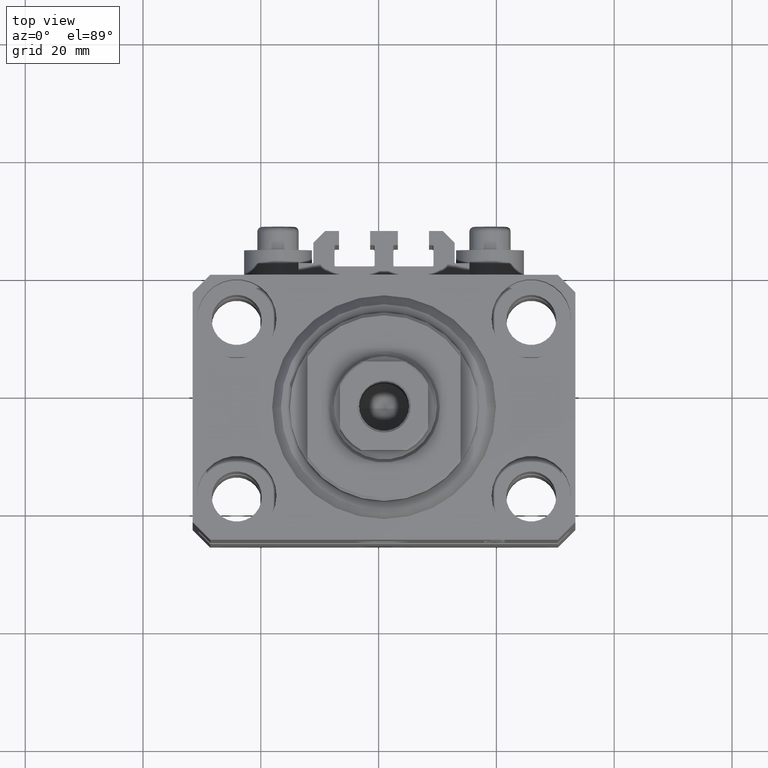
[diagram: clean part render]
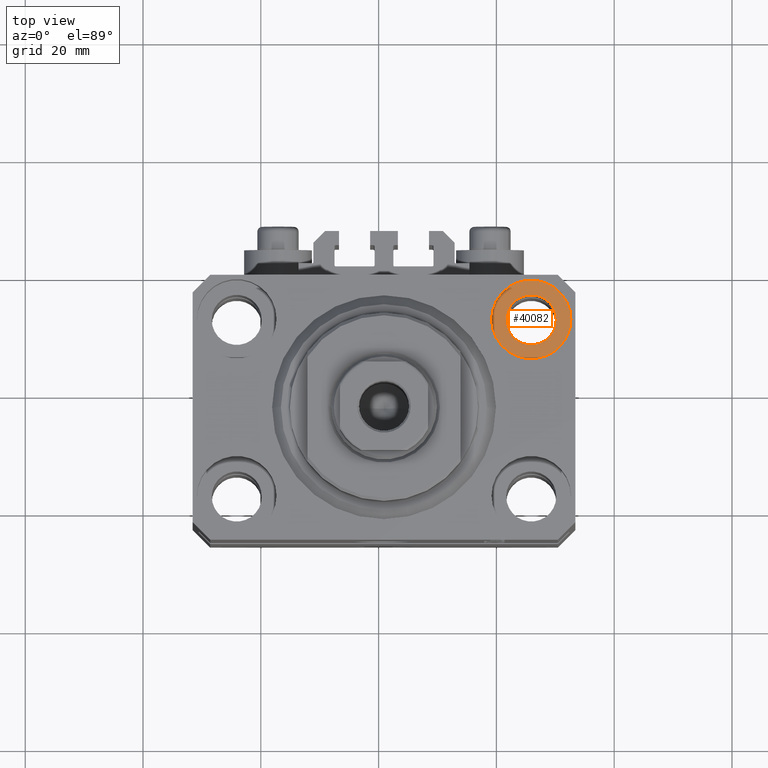
[diagram: same view with one face highlighted and labeled with its STEP entity id]
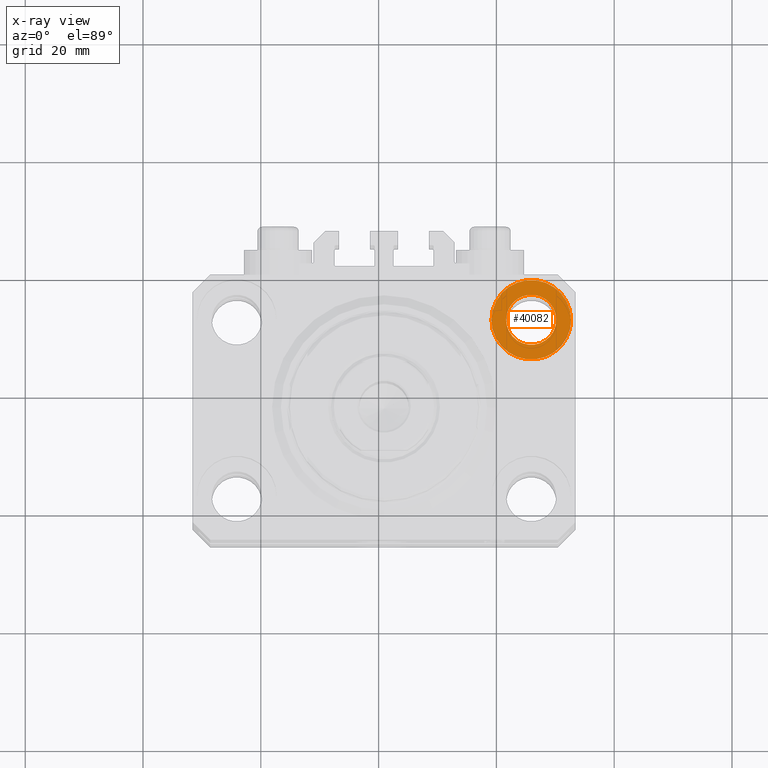
[diagram: x-ray of the same camera — body ghosted, the highlighted face saturated]
A machine part, top view. The second image highlights one B-rep face of the part: STEP entity #40082.
The next image is the same camera in x-ray: the body ghosted, the highlighted face saturated — about 0% of this face is hidden behind the body in this view.
In plain terms, the highlighted planar face has unit normal (0, 0, 1).
Its self-contained STEP definition (entity closure, byte-faithful):
#120 = CARTESIAN_POINT ( 'NONE',  ( 31.74999999995845101, 15.00000000000000888, -9.000000000000000000 ) ) ;
#541 = DIRECTION ( 'NONE',  ( 0.000000000000000000, 0.000000000000000000, 1.000000000000000000 ) ) ;
#688 = AXIS2_PLACEMENT_3D ( 'NONE', #5014, #42199, #16221 ) ;
#3075 = FACE_OUTER_BOUND ( 'NONE', #6775, .T. ) ;
#3591 = CIRCLE ( 'NONE', #25681, 4.249999999958450125 ) ;
#5014 = CARTESIAN_POINT ( 'NONE',  ( 24.99999999999999645, 15.00000000000000888, -9.000000000000000000 ) ) ;
#6775 = EDGE_LOOP ( 'NONE', ( #16526, #17758 ) ) ;
#6853 = EDGE_CURVE ( 'NONE', #27211, #11766, #38756, .T. ) ;
#8457 = EDGE_CURVE ( 'NONE', #21207, #15887, #3591, .T. ) ;
#10454 = EDGE_LOOP ( 'NONE', ( #24697, #35496 ) ) ;
#10762 = CARTESIAN_POINT ( 'NONE',  ( 24.99999999999999645, 15.00000000000000888, -9.000000000000000000 ) ) ;
#11496 = DIRECTION ( 'NONE',  ( 1.000000000000000000, 0.000000000000000000, 0.000000000000000000 ) ) ;
#11766 = VERTEX_POINT ( 'NONE', #21627 ) ;
#13139 = AXIS2_PLACEMENT_3D ( 'NONE', #18611, #25995, #29109 ) ;
#14051 = DIRECTION ( 'NONE',  ( 0.000000000000000000, 0.000000000000000000, 1.000000000000000000 ) ) ;
#15887 = VERTEX_POINT ( 'NONE', #17124 ) ;
#16221 = DIRECTION ( 'NONE',  ( 1.000000000000000000, 0.000000000000000000, 0.000000000000000000 ) ) ;
#16526 = ORIENTED_EDGE ( 'NONE', *, *, #6853, .T. ) ;
#16738 = EDGE_CURVE ( 'NONE', #15887, #21207, #33700, .T. ) ;
#17124 = CARTESIAN_POINT ( 'NONE',  ( 29.24999999995844746, 15.00000000000000888, -9.000000000000000000 ) ) ;
#17631 = PLANE ( 'NONE',  #45090 ) ;
#17758 = ORIENTED_EDGE ( 'NONE', *, *, #28611, .T. ) ;
#18611 = CARTESIAN_POINT ( 'NONE',  ( 24.99999999999999645, 15.00000000000000888, -9.000000000000000000 ) ) ;
#19518 = AXIS2_PLACEMENT_3D ( 'NONE', #33219, #541, #11496 ) ;
#21207 = VERTEX_POINT ( 'NONE', #43199 ) ;
#21627 = CARTESIAN_POINT ( 'NONE',  ( 18.25000000004154543, 15.00000000000000888, -9.000000000000000000 ) ) ;
#24697 = ORIENTED_EDGE ( 'NONE', *, *, #16738, .F. ) ;
#25681 = AXIS2_PLACEMENT_3D ( 'NONE', #10762, #42738, #28683 ) ;
#25995 = DIRECTION ( 'NONE',  ( 0.000000000000000000, 0.000000000000000000, 1.000000000000000000 ) ) ;
#27211 = VERTEX_POINT ( 'NONE', #120 ) ;
#28609 = DIRECTION ( 'NONE',  ( 1.000000000000000000, 0.000000000000000000, -0.000000000000000000 ) ) ;
#28611 = EDGE_CURVE ( 'NONE', #11766, #27211, #33966, .T. ) ;
#28683 = DIRECTION ( 'NONE',  ( 1.000000000000000000, 0.000000000000000000, 0.000000000000000000 ) ) ;
#29109 = DIRECTION ( 'NONE',  ( 1.000000000000000000, 0.000000000000000000, 0.000000000000000000 ) ) ;
#33219 = CARTESIAN_POINT ( 'NONE',  ( 24.99999999999999645, 15.00000000000000888, -9.000000000000000000 ) ) ;
#33700 = CIRCLE ( 'NONE', #13139, 4.249999999958450125 ) ;
#33966 = CIRCLE ( 'NONE', #19518, 6.749999999958452790 ) ;
#35496 = ORIENTED_EDGE ( 'NONE', *, *, #8457, .F. ) ;
#35745 = FACE_BOUND ( 'NONE', #10454, .T. ) ;
#38756 = CIRCLE ( 'NONE', #688, 6.749999999958452790 ) ;
#40082 = ADVANCED_FACE ( 'NONE', ( #35745, #3075 ), #17631, .T. ) ;
#42199 = DIRECTION ( 'NONE',  ( 0.000000000000000000, 0.000000000000000000, 1.000000000000000000 ) ) ;
#42738 = DIRECTION ( 'NONE',  ( 0.000000000000000000, 0.000000000000000000, 1.000000000000000000 ) ) ;
#43199 = CARTESIAN_POINT ( 'NONE',  ( 20.75000000004154899, 15.00000000000000888, -9.000000000000000000 ) ) ;
#45090 = AXIS2_PLACEMENT_3D ( 'NONE', #46725, #14051, #28609 ) ;
#46725 = CARTESIAN_POINT ( 'NONE',  ( 24.99999999999999645, 15.00000000000000888, -9.000000000000000000 ) ) ;